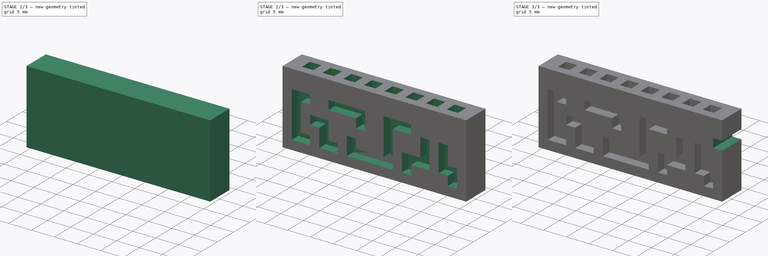
[diagram: build sequence overview — one tinted view per stage of 3, left to right]
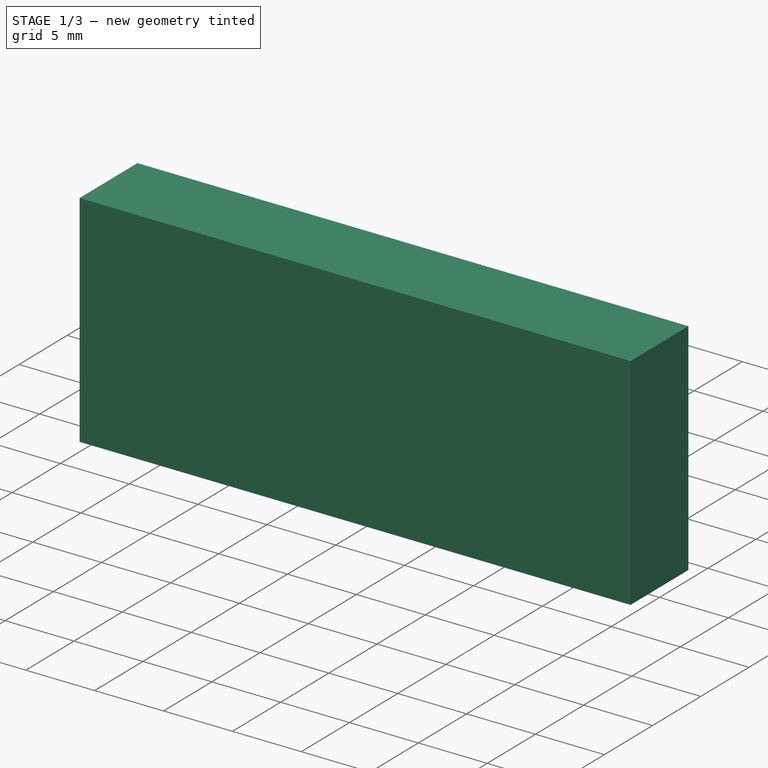
[diagram: stage 1 of 3 — iso view after this stage's code; geometry added in this stage tinted green]
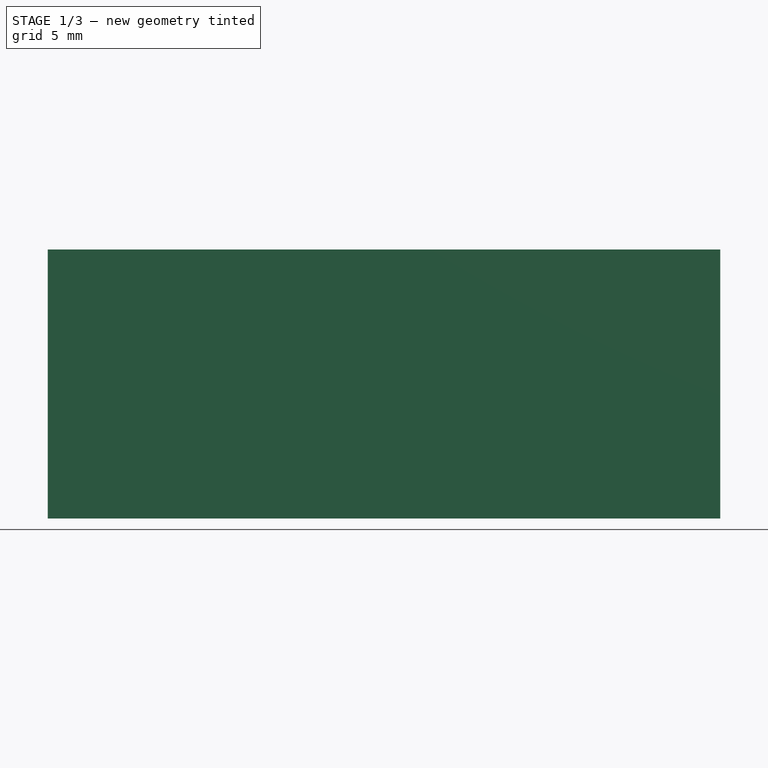
[diagram: stage 1 of 3 — front view after this stage's code; geometry added in this stage tinted green]
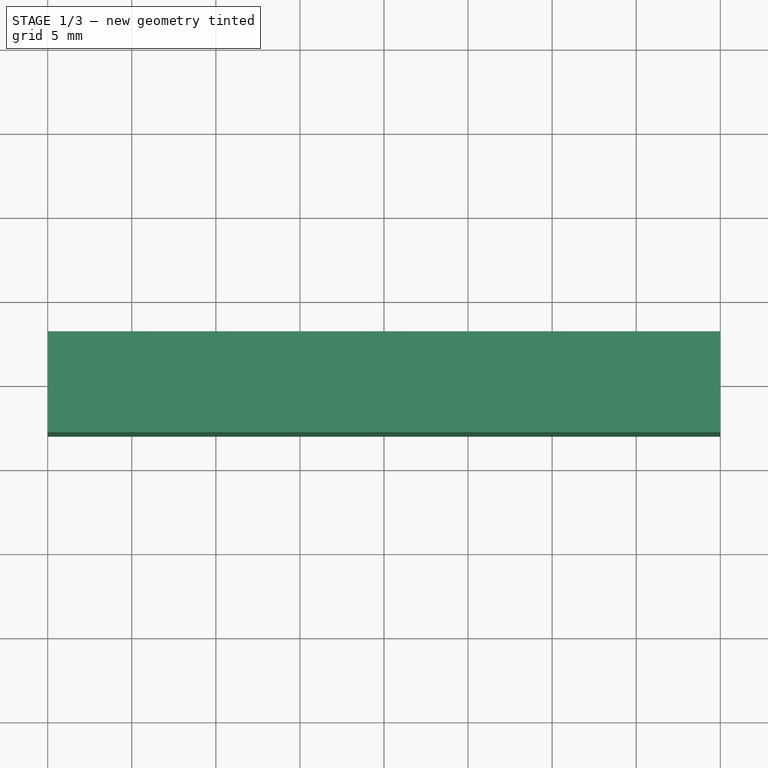
[diagram: stage 1 of 3 — top view after this stage's code; geometry added in this stage tinted green]
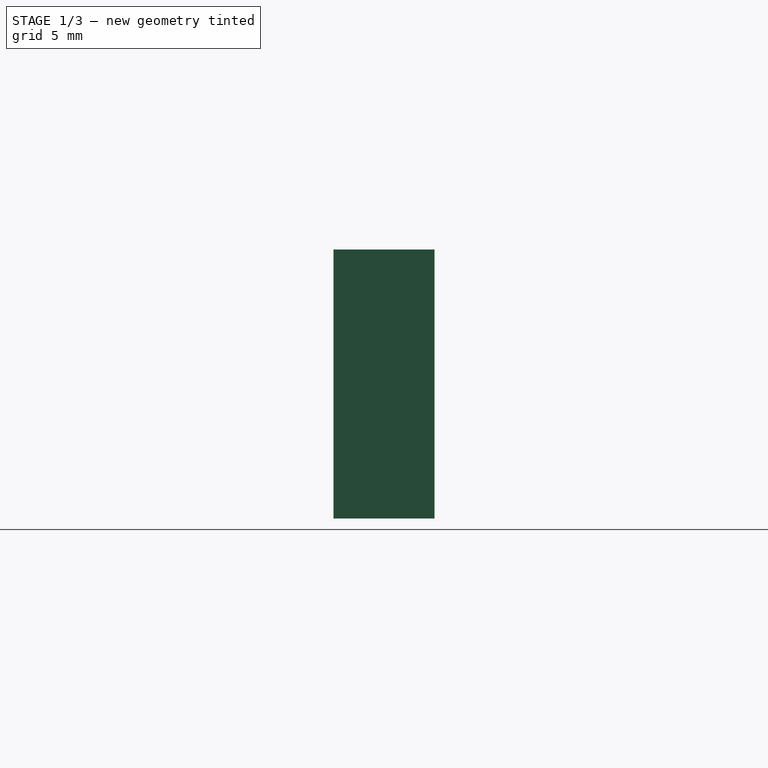
[diagram: stage 1 of 3 — right view after this stage's code; geometry added in this stage tinted green]
FCSTD DOCUMENT  (FreeCAD 0.20R29603 (Git))
Label: QMiniStorage
License: All rights reserved
LicenseURL: http://en.wikipedia.org/wiki/All_rights_reserved
objects: Sketcher::SketchObject×12, PartDesign::Pocket×4, PartDesign::Pad×2, PartDesign::Body×2
note: 26 computed .brp shape members not serialized (recipe doc carries the construction recipe); baked Part::Feature solids carry a one-line shape summary decoded from their .brp

FEATURE [Sketcher::SketchObject] Sketch
  FullyConstrained = true
  MapMode = 5
  Support = -> [XY_Plane]
  sketch-geometry (5):
    g0: LineSegment StartX=-20 StartY=-3 StartZ=0 EndX=-20 EndY=3 EndZ=0
    g1: LineSegment StartX=-20 StartY=3 StartZ=0 EndX=20 EndY=3 EndZ=0
    g2: LineSegment StartX=20 StartY=3 StartZ=0 EndX=20 EndY=-3 EndZ=0
    g3: LineSegment StartX=20 StartY=-3 StartZ=0 EndX=-20 EndY=-3 EndZ=0
    g4: GeomPoint X=0 Y=0 Z=0
  constraints (12):
    c: Coincident(g0,g1)
    c: Coincident(g1,g2)
    c: Coincident(g2,g3)
    c: Coincident(g3,g0)
    c: Horizontal(g1)
    c: Horizontal(g3)
    c: Vertical(g0)
    c: Vertical(g2)
    c: Symmetric(g1,g0,g4)
    c: Coincident(g4,g-1)
    c: DistanceX(g1,g1) = 40
    c: DistanceY(g0,g0) = 6
FEATURE [PartDesign::Pad] Pad
  Direction = (0,0,1)
  Length = 16
  Length2 = 10
  Profile = -> Sketch
  ReferenceAxis = -> Sketch [N_Axis]
  Type = 0
FEATURE [PartDesign::Body] Body  label="Base"
  Group = -> [Sketch,Pad,Sketch001,Pocket,Sketch002,Sketch003,Sketch004,Sketch005,Sketch006,Sketch007,Sketch008,Pocket001,MirroredSketch,Pocket002,Sketch009,Pocket003]
  Origin = -> Origin
  Tip = -> Pocket003
FEATURE [Sketcher::SketchObject] Sketch010
  FullyConstrained = true
  MapMode = 5
  Support = -> [XY_Plane001]
  sketch-geometry (5):
    g0: LineSegment StartX=-1 StartY=1 StartZ=0 EndX=-1 EndY=-1 EndZ=0
    g1: LineSegment StartX=-1 StartY=-1 StartZ=0 EndX=1 EndY=-1 EndZ=0
    g2: LineSegment StartX=1 StartY=-1 StartZ=0 EndX=1 EndY=1 EndZ=0
    g3: LineSegment StartX=1 StartY=1 StartZ=0 EndX=-1 EndY=1 EndZ=0
    g4: GeomPoint X=0 Y=0 Z=0
  constraints (12):
    c: Coincident(g0,g1)
    c: Coincident(g1,g2)
    c: Coincident(g2,g3)
    c: Coincident(g3,g0)
    c: Horizontal(g1)
    c: Horizontal(g3)
    c: Vertical(g0)
    c: Vertical(g2)
    c: Symmetric(g1,g0,g4)
    c: Coincident(g4,g-1)
    c: DistanceX(g3,g3) = 2
    c: DistanceY(g0,g0) = 2
FEATURE [PartDesign::Pad] Pad001
  Direction = (0,0,1)
  Length = 5
  Length2 = 10
  Profile = -> Sketch010
  ReferenceAxis = -> Sketch010 [N_Axis]
  Type = 0
FEATURE [PartDesign::Body] Body001  label="Indicator"
  Group = -> [Sketch010,Pad001]
  Origin = -> Origin001
  Tip = -> Pad001
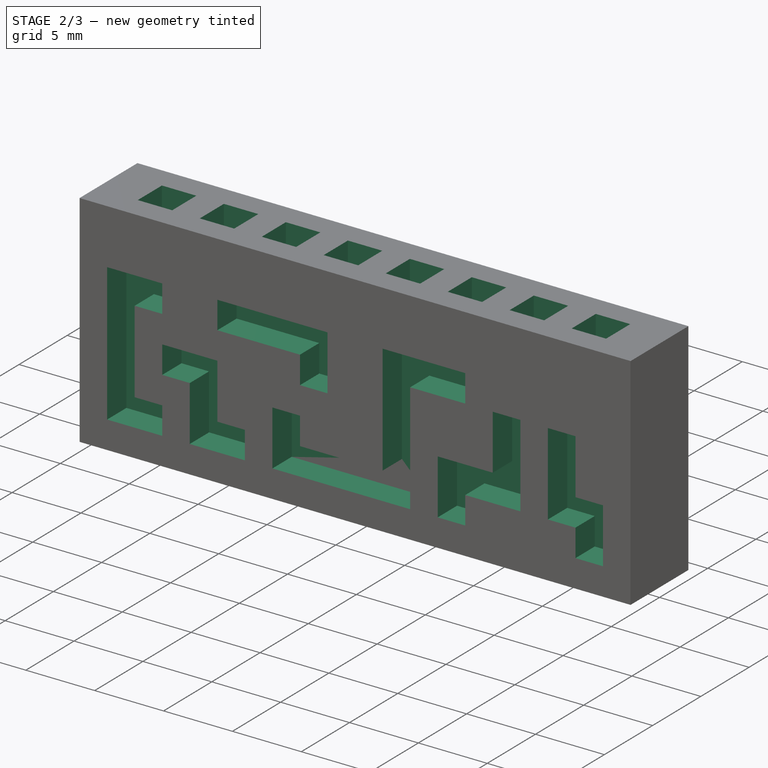
[diagram: stage 2 of 3 — iso view after this stage's code; geometry added in this stage tinted green]
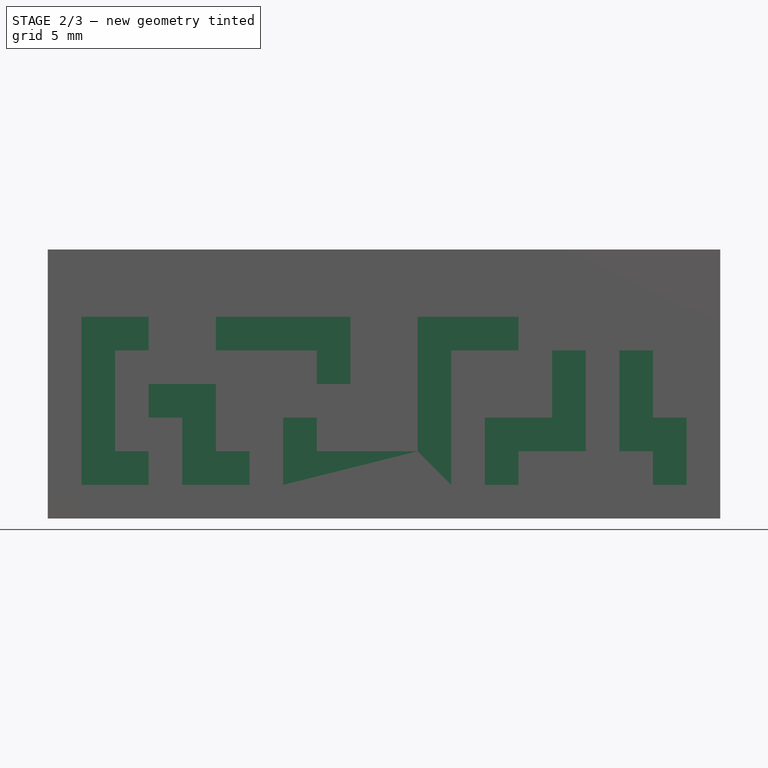
[diagram: stage 2 of 3 — front view after this stage's code; geometry added in this stage tinted green]
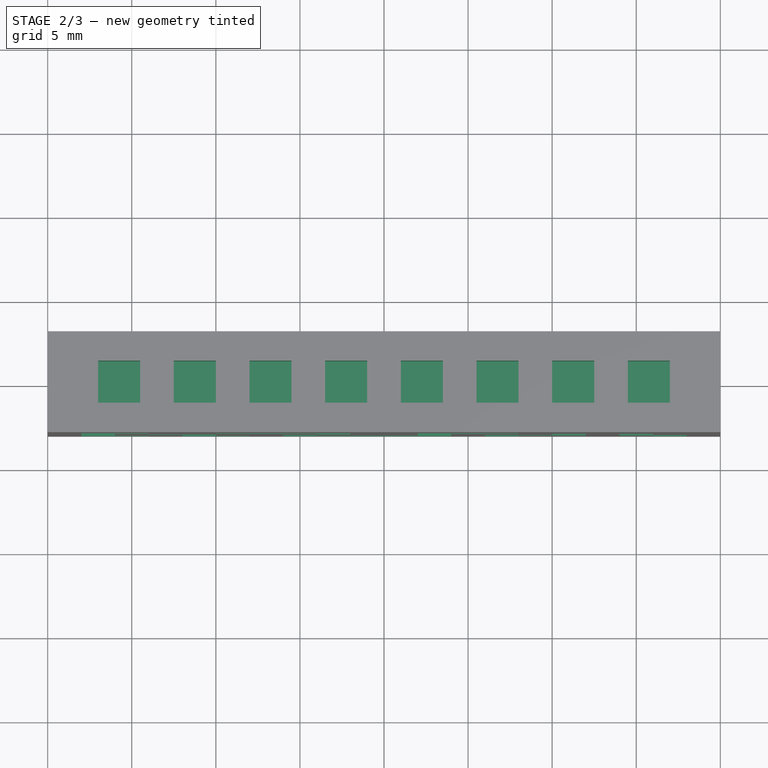
[diagram: stage 2 of 3 — top view after this stage's code; geometry added in this stage tinted green]
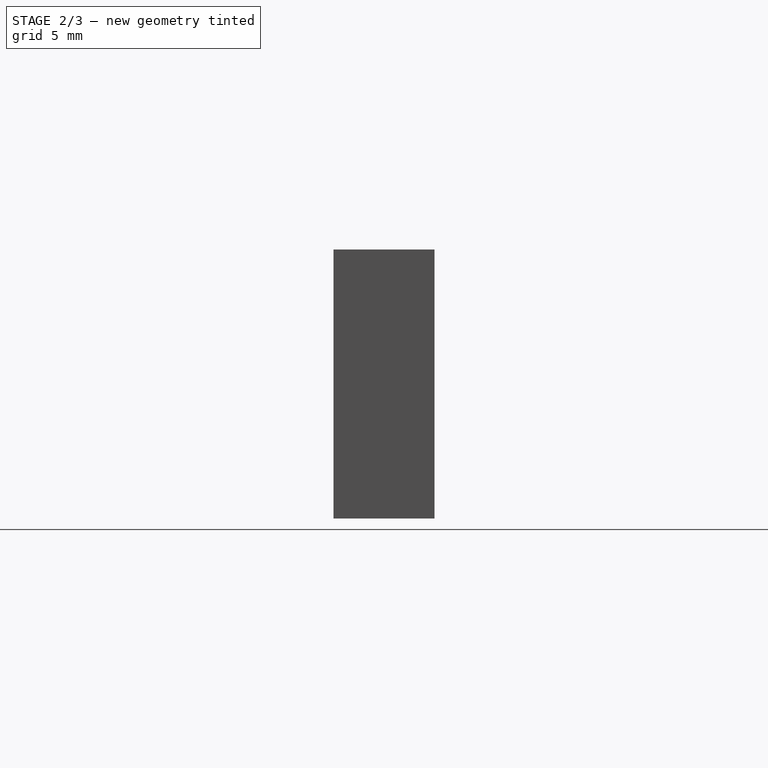
[diagram: stage 2 of 3 — right view after this stage's code; geometry added in this stage tinted green]
FEATURE [Sketcher::SketchObject] Sketch001
  FullyConstrained = true
  MapMode = 5
  Placement = pos=(0,0,16) rot=(0,0,1;0rad)
  Support = -> [Pad]
  sketch-geometry (40):
    g0: LineSegment StartX=1 StartY=1.25 StartZ=0 EndX=1 EndY=-1.25 EndZ=0
    g1: LineSegment StartX=1 StartY=-1.25 StartZ=0 EndX=3.5 EndY=-1.25 EndZ=0
    g2: LineSegment StartX=3.5 StartY=-1.25 StartZ=0 EndX=3.5 EndY=1.25 EndZ=0
    g3: LineSegment StartX=3.5 StartY=1.25 StartZ=0 EndX=1 EndY=1.25 EndZ=0
    g4: GeomPoint X=2.25 Y=0 Z=0
    g5: LineSegment StartX=5.5 StartY=1.25 StartZ=0 EndX=5.5 EndY=-1.25 EndZ=0
    g6: LineSegment StartX=5.5 StartY=-1.25 StartZ=0 EndX=8 EndY=-1.25 EndZ=0
    g7: LineSegment StartX=8 StartY=-1.25 StartZ=0 EndX=8 EndY=1.25 EndZ=0
    g8: LineSegment StartX=8 StartY=1.25 StartZ=0 EndX=5.5 EndY=1.25 EndZ=0
    g9: GeomPoint X=6.75 Y=0 Z=0
    g10: LineSegment StartX=10 StartY=1.25 StartZ=0 EndX=10 EndY=-1.25 EndZ=0
    g11: LineSegment StartX=10 StartY=-1.25 StartZ=0 EndX=12.5 EndY=-1.25 EndZ=0
    g12: LineSegment StartX=12.5 StartY=-1.25 StartZ=0 EndX=12.5 EndY=1.25 EndZ=0
    g13: LineSegment StartX=12.5 StartY=1.25 StartZ=0 EndX=10 EndY=1.25 EndZ=0
    g14: GeomPoint X=11.25 Y=0 Z=0
    g15: LineSegment StartX=14.5 StartY=1.25 StartZ=0 EndX=14.5 EndY=-1.25 EndZ=0
    g16: LineSegment StartX=14.5 StartY=-1.25 StartZ=0 EndX=17 EndY=-1.25 EndZ=0
    g17: LineSegment StartX=17 StartY=-1.25 StartZ=0 EndX=17 EndY=1.25 EndZ=0
    g18: LineSegment StartX=17 StartY=1.25 StartZ=0 EndX=14.5 EndY=1.25 EndZ=0
    g19: GeomPoint X=15.75 Y=0 Z=0
    g20: LineSegment StartX=-3.5 StartY=1.25 StartZ=0 EndX=-3.5 EndY=-1.25 EndZ=0
    g21: LineSegment StartX=-3.5 StartY=-1.25 StartZ=0 EndX=-1 EndY=-1.25 EndZ=0
    g22: LineSegment StartX=-1 StartY=-1.25 StartZ=0 EndX=-1 EndY=1.25 EndZ=0
    g23: LineSegment StartX=-1 StartY=1.25 StartZ=0 EndX=-3.5 EndY=1.25 EndZ=0
    g24: GeomPoint X=-2.25 Y=-2e-16 Z=0
    g25: LineSegment StartX=-8 StartY=1.25 StartZ=0 EndX=-8 EndY=-1.25 EndZ=0
    g26: LineSegment StartX=-8 StartY=-1.25 StartZ=0 EndX=-5.5 EndY=-1.25 EndZ=0
    g27: LineSegment StartX=-5.5 StartY=-1.25 StartZ=0 EndX=-5.5 EndY=1.25 EndZ=0
    g28: LineSegment StartX=-5.5 StartY=1.25 StartZ=0 EndX=-8 EndY=1.25 EndZ=0
    g29: GeomPoint X=-6.75 Y=-3.3e-15 Z=0
    g30: LineSegment StartX=-12.5 StartY=1.25 StartZ=0 EndX=-12.5 EndY=-1.25 EndZ=0
    g31: LineSegment StartX=-12.5 StartY=-1.25 StartZ=0 EndX=-10 EndY=-1.25 EndZ=0
    g32: LineSegment StartX=-10 StartY=-1.25 StartZ=0 EndX=-10 EndY=1.25 EndZ=0
    g33: LineSegment StartX=-10 StartY=1.25 StartZ=0 EndX=-12.5 EndY=1.25 EndZ=0
    g34: GeomPoint X=-11.25 Y=-6.0619e-12 Z=0
    g35: LineSegment StartX=-17 StartY=1.25 StartZ=0 EndX=-17 EndY=-1.25 EndZ=0
    g36: LineSegment StartX=-17 StartY=-1.25 StartZ=0 EndX=-14.5 EndY=-1.25 EndZ=0
    g37: LineSegment StartX=-14.5 StartY=-1.25 StartZ=0 EndX=-14.5 EndY=1.25 EndZ=0
    g38: LineSegment StartX=-14.5 StartY=1.25 StartZ=0 EndX=-17 EndY=1.25 EndZ=0
    g39: GeomPoint X=-15.75 Y=5.14e-14 Z=0
  constraints (100):
    c: Coincident(g0,g1)
    c: Coincident(g1,g2)
    c: Coincident(g2,g3)
    c: Coincident(g3,g0)
    c: Horizontal(g1)
    c: Horizontal(g3)
    c: Vertical(g0)
    c: Vertical(g2)
    c: Symmetric(g1,g0,g4)
    c: PointOnObject(g4,g-1)
    c: Coincident(g5,g6)
    c: Coincident(g6,g7)
    c: Coincident(g7,g8)
    c: Coincident(g8,g5)
    c: Horizontal(g6)
    c: Horizontal(g8)
    c: Vertical(g5)
    c: Vertical(g7)
    c: Symmetric(g6,g5,g9)
    c: PointOnObject(g9,g-1)
    c: Coincident(g10,g11)
    c: Coincident(g11,g12)
    c: Coincident(g12,g13)
    c: Coincident(g13,g10)
    c: Horizontal(g11)
    c: Horizontal(g13)
    c: Vertical(g10)
    c: Vertical(g12)
    c: Symmetric(g11,g10,g14)
    c: PointOnObject(g14,g-1)
    c: Coincident(g15,g16)
    c: Coincident(g16,g17)
    c: Coincident(g17,g18)
    c: Coincident(g18,g15)
    c: Horizontal(g16)
    c: Horizontal(g18)
    c: Vertical(g15)
    c: Vertical(g17)
    c: Symmetric(g16,g15,g19)
    c: PointOnObject(g19,g-1)
    c: Coincident(g20,g21)
    c: Coincident(g21,g22)
    c: Coincident(g22,g23)
    c: Coincident(g23,g20)
    c: Horizontal(g21)
    c: Horizontal(g23)
    c: Vertical(g20)
    c: Vertical(g22)
    c: Symmetric(g21,g20,g24)
    c: Coincident(g25,g26)
    c: Coincident(g26,g27)
    c: Coincident(g27,g28)
    c: Coincident(g28,g25)
    c: Horizontal(g26)
    c: Horizontal(g28)
    c: Vertical(g25)
    c: Vertical(g27)
    c: Symmetric(g26,g25,g29)
    c: Coincident(g30,g31)
    c: Coincident(g31,g32)
    c: Coincident(g32,g33)
    c: Coincident(g33,g30)
    c: Horizontal(g31)
    c: Horizontal(g33)
    c: Vertical(g30)
    c: Vertical(g32)
    c: Symmetric(g31,g30,g34)
    c: Coincident(g35,g36)
    c: Coincident(g36,g37)
    c: Coincident(g37,g38)
    c: Coincident(g38,g35)
    c: Horizontal(g36)
    c: Horizontal(g38)
    c: Vertical(g35)
    c: Vertical(g37)
    c: Symmetric(g36,g35,g39)
    c: Equal(g3,g8)
    c: Equal(g8,g23)
    c: Equal(g23,g28)
    c: Equal(g28,g18)
    c: Equal(g18,g13)
    c: Equal(g13,g33)
    c: Equal(g33,g38)
    c: Equal(g35,g30)
    c: Equal(g30,g25)
    c: Equal(g25,g20)
    c: Equal(g20,g0)
    c: Equal(g0,g5)
    c: Equal(g5,g10)
    c: Equal(g10,g15)
    c: DistanceX(g38,g38) = 2.5
    c: DistanceY(g35,g35) = 2.5
    c: Symmetric(g0,g22,g-2)
    c: DistanceX(g22,g0) = 2
    c: Symmetric(g27,g5,g-2)
    c: DistanceX(g2,g5) = 2
    c: Symmetric(g32,g10,g-2)
    c: DistanceX(g7,g10) = 2
    c: Symmetric(g37,g15,g-2)
    c: DistanceX(g37,g30) = 2
FEATURE [PartDesign::Pocket] Pocket
  BaseFeature = -> Pad
  Direction = (0,0,-1)
  Length = 2.5
  Length2 = 5
  Profile = -> Sketch001
  ReferenceAxis = -> Sketch001 [N_Axis]
  Type = 0
FEATURE [Sketcher::SketchObject] Sketch002
  FullyConstrained = true
  MapMode = 5
  Placement = pos=(0,-3,0) rot=(1,0,0;1.5708rad)
  Support = -> [Pocket]
  sketch-geometry (9):
    g0: LineSegment StartX=-18 StartY=12 StartZ=0 EndX=-18 EndY=2 EndZ=0
    g1: LineSegment StartX=-18 StartY=2 StartZ=0 EndX=-14 EndY=2 EndZ=0
    g2: LineSegment StartX=-14 StartY=12 StartZ=0 EndX=-18 EndY=12 EndZ=0
    g3: GeomPoint X=-16 Y=7 Z=0
    g4: LineSegment StartX=-14 StartY=12 StartZ=0 EndX=-14 EndY=10 EndZ=0
    g5: LineSegment StartX=-14 StartY=10 StartZ=0 EndX=-16 EndY=10 EndZ=0
    g6: LineSegment StartX=-16 StartY=10 StartZ=0 EndX=-16 EndY=4 EndZ=0
    g7: LineSegment StartX=-16 StartY=4 StartZ=0 EndX=-14 EndY=4 EndZ=0
    g8: LineSegment StartX=-14 StartY=4 StartZ=0 EndX=-14 EndY=2 EndZ=0
  constraints (25):
    c: Coincident(g0,g1)
    c: Coincident(g2,g0)
    c: Horizontal(g1)
    c: Horizontal(g2)
    c: Vertical(g0)
    c: Symmetric(g1,g0,g3)
    c: DistanceY(g0,g0) = 10
    c: DistanceX(g2,g2) = 4
    c: Coincident(g2,g4)
    c: Vertical(g4)
    c: Coincident(g4,g5)
    c: Coincident(g5,g6)
    c: Vertical(g6)
    c: Coincident(g6,g7)
    c: Horizontal(g7)
    c: Coincident(g7,g8)
    c: Coincident(g8,g1)
    c: Vertical(g8)
    c: Horizontal(g5)
    c: DistanceX(g5,g5) = 2
    c: DistanceY(g6,g6) = 6
    c: DistanceY(g4,g4) = 2
    c: Equal(g1,g2)
    c: DistanceX(g0) = -18
    c: DistanceY(g1) = 2
FEATURE [Sketcher::SketchObject] Sketch003
  FullyConstrained = true
  MapMode = 5
  Placement = pos=(0,-3,0) rot=(1,0,0;1.5708rad)
  Support = -> [Pocket]
  sketch-geometry (6):
    g0: LineSegment StartX=-10 StartY=12 StartZ=0 EndX=-10 EndY=10 EndZ=0
    g1: LineSegment StartX=-10 StartY=10 StartZ=0 EndX=-4 EndY=10 EndZ=0
    g2: LineSegment StartX=-4 StartY=10 StartZ=0 EndX=-4 EndY=8 EndZ=0
    g3: LineSegment StartX=-4 StartY=8 StartZ=0 EndX=-2 EndY=8 EndZ=0
    g4: LineSegment StartX=-2 StartY=8 StartZ=0 EndX=-2 EndY=12 EndZ=0
    g5: LineSegment StartX=-2 StartY=12 StartZ=0 EndX=-10 EndY=12 EndZ=0
  constraints (18):
    c: Vertical(g0)
    c: Coincident(g0,g1)
    c: Horizontal(g1)
    c: Coincident(g1,g2)
    c: Vertical(g2)
    c: Coincident(g2,g3)
    c: Horizontal(g3)
    c: Coincident(g3,g4)
    c: Vertical(g4)
    c: Coincident(g4,g5)
    c: Coincident(g5,g0)
    c: Horizontal(g5)
    c: DistanceY(g4,g4) = 4
    c: DistanceY(g0,g0) = 2
    c: DistanceX(g5,g5) = 8
    c: DistanceX(g3,g3) = 2
    c: DistanceX(g3,g-1) = 2
    c: DistanceY(g3,g-1) = -8
FEATURE [Sketcher::SketchObject] Sketch004
  FullyConstrained = true
  MapMode = 5
  Placement = pos=(0,-3,0) rot=(1,0,0;1.5708rad)
  Support = -> [Pocket]
  sketch-geometry (8):
    g0: LineSegment StartX=-12 StartY=2 StartZ=0 EndX=-8 EndY=2 EndZ=0
    g1: LineSegment StartX=-8 StartY=2 StartZ=0 EndX=-8 EndY=4 EndZ=0
    g2: LineSegment StartX=-8 StartY=4 StartZ=0 EndX=-10 EndY=4 EndZ=0
    g3: LineSegment StartX=-10 StartY=4 StartZ=0 EndX=-10 EndY=8 EndZ=0
    g4: LineSegment StartX=-10 StartY=8 StartZ=0 EndX=-14 EndY=8 EndZ=0
    g5: LineSegment StartX=-14 StartY=8 StartZ=0 EndX=-14 EndY=6 EndZ=0
    g6: LineSegment StartX=-14 StartY=6 StartZ=0 EndX=-12 EndY=6 EndZ=0
    g7: LineSegment StartX=-12 StartY=6 StartZ=0 EndX=-12 EndY=2 EndZ=0
  constraints (25):
    c: Horizontal(g0)
    c: Coincident(g0,g1)
    c: Vertical(g1)
    c: Coincident(g1,g2)
    c: Horizontal(g2)
    c: Coincident(g2,g3)
    c: Vertical(g3)
    c: Coincident(g3,g4)
    c: Horizontal(g4)
    c: DistanceX(g0,g0) = 4
    c: DistanceX(g4,g4) = 4
    c: DistanceY(g0,g4) = 6
    c: DistanceY(g1,g1) = 2
    c: DistanceY(g-1,g0) = 2
    c: DistanceX(g0) = -8
    c: DistanceX(g2,g2) = 2
    c: Vertical(g5)
    c: Coincident(g5,g6)
    c: Horizontal(g6)
    c: Coincident(g6,g7)
    c: Coincident(g7,g0)
    c: Vertical(g7)
    c: DistanceX(g6,g6) = 2
    c: DistanceY(g5,g5) = 2
    c: DistanceY(g7,g7) = 4
FEATURE [Sketcher::SketchObject] Sketch005
  FullyConstrained = true
  MapMode = 5
  Placement = pos=(0,-3,0) rot=(1,0,0;1.5708rad)
  Support = -> [Pocket]
  sketch-geometry (10):
    g0: LineSegment StartX=-6 StartY=6 StartZ=0 EndX=-6 EndY=2 EndZ=0
    g1: LineSegment StartX=-6 StartY=2 StartZ=0 EndX=4 EndY=2 EndZ=0
    g2: LineSegment StartX=8 StartY=12 StartZ=0 EndX=2 EndY=12 EndZ=0
    g3: LineSegment StartX=2 StartY=12 StartZ=0 EndX=2 EndY=4 EndZ=0
    g4: LineSegment StartX=2 StartY=4 StartZ=0 EndX=-4 EndY=4 EndZ=0
    g5: LineSegment StartX=-4 StartY=4 StartZ=0 EndX=-4 EndY=6 EndZ=0
    g6: LineSegment StartX=-4 StartY=6 StartZ=0 EndX=-6 EndY=6 EndZ=0
    g7: LineSegment StartX=4 StartY=2 StartZ=0 EndX=4 EndY=10 EndZ=0
    g8: LineSegment StartX=4 StartY=10 StartZ=0 EndX=8 EndY=10 EndZ=0
    g9: LineSegment StartX=8 StartY=10 StartZ=0 EndX=8 EndY=12 EndZ=0
  constraints (30):
    c: Vertical(g0)
    c: Coincident(g0,g1)
    c: Horizontal(g1)
    c: Coincident(g2,g3)
    c: Vertical(g3)
    c: Coincident(g3,g4)
    c: Horizontal(g4)
    c: Coincident(g4,g5)
    c: Vertical(g5)
    c: Coincident(g5,g6)
    c: Horizontal(g6)
    c: Coincident(g0,g6)
    c: Horizontal(g2)
    c: DistanceX(g2,g2) = 6
    c: DistanceY(g1,g2) = 10
    c: DistanceX(g4,g4) = 6
    c: DistanceY(g0,g0) = 4
    c: DistanceX(g0) = -6
    c: DistanceY(g0) = 2
    c: DistanceY(g5,g5) = 2
    c: Coincident(g1,g7)
    c: Vertical(g7)
    c: Coincident(g7,g8)
    c: Horizontal(g8)
    c: Coincident(g8,g9)
    c: Coincident(g9,g2)
    c: DistanceX(g6,g6) = 2
    c: Vertical(g9)
    c: DistanceY(g7,g7) = 8
    c: DistanceX(g8,g8) = 4
FEATURE [Sketcher::SketchObject] Sketch006
  FullyConstrained = true
  MapMode = 5
  Placement = pos=(0,-3,0) rot=(1,0,0;1.5708rad)
  Support = -> [Pocket]
  sketch-geometry (8):
    g0: LineSegment StartX=6 StartY=6 StartZ=0 EndX=6 EndY=2 EndZ=0
    g1: LineSegment StartX=6 StartY=2 StartZ=0 EndX=8 EndY=2 EndZ=0
    g2: LineSegment StartX=8 StartY=2 StartZ=0 EndX=8 EndY=4 EndZ=0
    g3: LineSegment StartX=8 StartY=4 StartZ=0 EndX=12 EndY=4 EndZ=0
    g4: LineSegment StartX=12 StartY=4 StartZ=0 EndX=12 EndY=10 EndZ=0
    g5: LineSegment StartX=12 StartY=10 StartZ=0 EndX=10 EndY=10 EndZ=0
    g6: LineSegment StartX=10 StartY=10 StartZ=0 EndX=10 EndY=6 EndZ=0
    g7: LineSegment StartX=10 StartY=6 StartZ=0 EndX=6 EndY=6 EndZ=0
  constraints (24):
    c: Vertical(g0)
    c: Coincident(g0,g1)
    c: Horizontal(g1)
    c: Coincident(g1,g2)
    c: Vertical(g2)
    c: Coincident(g2,g3)
    c: Horizontal(g3)
    c: Coincident(g3,g4)
    c: Vertical(g4)
    c: Coincident(g4,g5)
    c: Horizontal(g5)
    c: Coincident(g5,g6)
    c: Vertical(g6)
    c: Coincident(g6,g7)
    c: Coincident(g7,g0)
    c: Horizontal(g7)
    c: DistanceX(g1,g1) = 2
    c: DistanceX(g5,g5) = 2
    c: DistanceX(g3,g3) = 4
    c: DistanceX(g0) = 6
    c: DistanceY(g0) = 2
    c: DistanceY(g2,g2) = 2
    c: DistanceY(g4,g4) = 6
    c: DistanceY(g6,g6) = 4
FEATURE [Sketcher::SketchObject] Sketch007
  FullyConstrained = true
  MapMode = 5
  Placement = pos=(0,-3,0) rot=(1,0,0;1.5708rad)
  Support = -> [Pocket]
  sketch-geometry (8):
    g0: LineSegment StartX=14 StartY=4 StartZ=0 EndX=14 EndY=10 EndZ=0
    g1: LineSegment StartX=14 StartY=10 StartZ=0 EndX=16 EndY=10 EndZ=0
    g2: LineSegment StartX=16 StartY=10 StartZ=0 EndX=16 EndY=6 EndZ=0
    g3: LineSegment StartX=16 StartY=6 StartZ=0 EndX=18 EndY=6 EndZ=0
    g4: LineSegment StartX=18 StartY=6 StartZ=0 EndX=18 EndY=2 EndZ=0
    g5: LineSegment StartX=14 StartY=4 StartZ=0 EndX=16 EndY=4 EndZ=0
    g6: LineSegment StartX=16 StartY=4 StartZ=0 EndX=16 EndY=2 EndZ=0
    g7: LineSegment StartX=16 StartY=2 StartZ=0 EndX=18 EndY=2 EndZ=0
  constraints (24):
    c: Coincident(g0,g1)
    c: Horizontal(g1)
    c: DistanceX(g1,g1) = 2
    c: DistanceX(g0) = 14
    c: DistanceY(g4,g1) = 8
    c: Coincident(g1,g2)
    c: Coincident(g2,g3)
    c: Horizontal(g3)
    c: Coincident(g3,g4)
    c: Vertical(g4)
    c: DistanceY(g4) = 2
    c: DistanceY(g0,g0) = 6
    c: Coincident(g0,g5)
    c: Horizontal(g5)
    c: Coincident(g5,g6)
    c: Vertical(g6)
    c: Coincident(g6,g7)
    c: Coincident(g7,g4)
    c: Horizontal(g7)
    c: Vertical(g2)
    c: DistanceX(g3,g3) = 2
    c: DistanceX(g5,g5) = 2
    c: DistanceY(g4,g4) = 4
    c: Vertical(g0)
FEATURE [Sketcher::SketchObject] Sketch008
  FullyConstrained = true
  MapMode = 5
  Placement = pos=(0,-3,0) rot=(1,0,0;1.5708rad)
  Support = -> [Pocket]
  sketch-geometry (49):
    g0: LineSegment StartX=-18 StartY=12 StartZ=0 EndX=-18 EndY=2 EndZ=0
    g1: LineSegment StartX=-18 StartY=2 StartZ=0 EndX=-14 EndY=2 EndZ=0
    g2: LineSegment StartX=-14 StartY=12 StartZ=0 EndX=-18 EndY=12 EndZ=0
    g3: GeomPoint X=-16 Y=7 Z=0
    g4: LineSegment StartX=-14 StartY=12 StartZ=0 EndX=-14 EndY=10 EndZ=0
    g5: LineSegment StartX=-14 StartY=10 StartZ=0 EndX=-16 EndY=10 EndZ=0
    g6: LineSegment StartX=-16 StartY=10 StartZ=0 EndX=-16 EndY=4 EndZ=0
    g7: LineSegment StartX=-16 StartY=4 StartZ=0 EndX=-14 EndY=4 EndZ=0
    g8: LineSegment StartX=-14 StartY=4 StartZ=0 EndX=-14 EndY=2 EndZ=0
    g9: LineSegment StartX=-10 StartY=12 StartZ=0 EndX=-10 EndY=10 EndZ=0
    g10: LineSegment StartX=-10 StartY=10 StartZ=0 EndX=-4 EndY=10 EndZ=0
    g11: LineSegment StartX=-4 StartY=10 StartZ=0 EndX=-4 EndY=8 EndZ=0
    g12: LineSegment StartX=-4 StartY=8 StartZ=0 EndX=-2 EndY=8 EndZ=0
    g13: LineSegment StartX=-2 StartY=8 StartZ=0 EndX=-2 EndY=12 EndZ=0
    g14: LineSegment StartX=-2 StartY=12 StartZ=0 EndX=-10 EndY=12 EndZ=0
    g15: LineSegment StartX=-12 StartY=2 StartZ=0 EndX=-8 EndY=2 EndZ=0
    g16: LineSegment StartX=-8 StartY=2 StartZ=0 EndX=-8 EndY=4 EndZ=0
    g17: LineSegment StartX=-8 StartY=4 StartZ=0 EndX=-10 EndY=4 EndZ=0
    g18: LineSegment StartX=-10 StartY=4 StartZ=0 EndX=-10 EndY=8 EndZ=0
    g19: LineSegment StartX=-10 StartY=8 StartZ=0 EndX=-14 EndY=8 EndZ=0
    g20: LineSegment StartX=-14 StartY=8 StartZ=0 EndX=-14 EndY=6 EndZ=0
    g21: LineSegment StartX=-14 StartY=6 StartZ=0 EndX=-12 EndY=6 EndZ=0
    g22: LineSegment StartX=-12 StartY=6 StartZ=0 EndX=-12 EndY=2 EndZ=0
    g23: LineSegment StartX=-6 StartY=6 StartZ=0 EndX=-6 EndY=2 EndZ=0
    g24: LineSegment StartX=-6 StartY=2 StartZ=0 EndX=4 EndY=2 EndZ=0
    g25: LineSegment StartX=8 StartY=12 StartZ=0 EndX=2 EndY=12 EndZ=0
    g26: LineSegment StartX=2 StartY=12 StartZ=0 EndX=2 EndY=4 EndZ=0
    g27: LineSegment StartX=2 StartY=4 StartZ=0 EndX=-4 EndY=4 EndZ=0
    g28: LineSegment StartX=-4 StartY=4 StartZ=0 EndX=-4 EndY=6 EndZ=0
    g29: LineSegment StartX=-4 StartY=6 StartZ=0 EndX=-6 EndY=6 EndZ=0
    g30: LineSegment StartX=4 StartY=2 StartZ=0 EndX=4 EndY=10 EndZ=0
    g31: LineSegment StartX=4 StartY=10 StartZ=0 EndX=8 EndY=10 EndZ=0
    g32: LineSegment StartX=8 StartY=10 StartZ=0 EndX=8 EndY=12 EndZ=0
    g33: LineSegment StartX=6 StartY=6 StartZ=0 EndX=6 EndY=2 EndZ=0
    g34: LineSegment StartX=6 StartY=2 StartZ=0 EndX=8 EndY=2 EndZ=0
    g35: LineSegment StartX=8 StartY=2 StartZ=0 EndX=8 EndY=4 EndZ=0
    g36: LineSegment StartX=8 StartY=4 StartZ=0 EndX=12 EndY=4 EndZ=0
    g37: LineSegment StartX=12 StartY=4 StartZ=0 EndX=12 EndY=10 EndZ=0
    g38: LineSegment StartX=12 StartY=10 StartZ=0 EndX=10 EndY=10 EndZ=0
    g39: LineSegment StartX=10 StartY=10 StartZ=0 EndX=10 EndY=6 EndZ=0
    g40: LineSegment StartX=10 StartY=6 StartZ=0 EndX=6 EndY=6 EndZ=0
    g41: LineSegment StartX=14 StartY=4 StartZ=0 EndX=14 EndY=10 EndZ=0
    g42: LineSegment StartX=14 StartY=10 StartZ=0 EndX=16 EndY=10 EndZ=0
    g43: LineSegment StartX=16 StartY=10 StartZ=0 EndX=16 EndY=6 EndZ=0
    g44: LineSegment StartX=16 StartY=6 StartZ=0 EndX=18 EndY=6 EndZ=0
    g45: LineSegment StartX=18 StartY=6 StartZ=0 EndX=18 EndY=2 EndZ=0
    g46: LineSegment StartX=14 StartY=4 StartZ=0 EndX=16 EndY=4 EndZ=0
    g47: LineSegment StartX=16 StartY=4 StartZ=0 EndX=16 EndY=2 EndZ=0
    g48: LineSegment StartX=16 StartY=2 StartZ=0 EndX=18 EndY=2 EndZ=0
  constraints (146):
    c: Coincident(g0,g1)
    c: Coincident(g2,g0)
    c: Horizontal(g1)
    c: Horizontal(g2)
    c: Vertical(g0)
    c: Symmetric(g1,g0,g3)
    c: DistanceY(g0,g0) = 10
    c: DistanceX(g2,g2) = 4
    c: Coincident(g2,g4)
    c: Vertical(g4)
    c: Coincident(g4,g5)
    c: Coincident(g5,g6)
    c: Vertical(g6)
    c: Coincident(g6,g7)
    c: Horizontal(g7)
    c: Coincident(g7,g8)
    c: Coincident(g8,g1)
    c: Vertical(g8)
    c: Horizontal(g5)
    c: DistanceX(g5,g5) = 2
    c: DistanceY(g6,g6) = 6
    c: DistanceY(g4,g4) = 2
    c: Equal(g1,g2)
    c: DistanceX(g0) = -18
    c: DistanceY(g1) = 2
    c: Vertical(g9)
    c: Coincident(g9,g10)
    c: Horizontal(g10)
    c: Coincident(g10,g11)
    c: Vertical(g11)
    c: Coincident(g11,g12)
    c: Horizontal(g12)
    c: Coincident(g12,g13)
    c: Vertical(g13)
    c: Coincident(g13,g14)
    c: Coincident(g14,g9)
    c: Horizontal(g14)
    c: DistanceY(g13,g13) = 4
    c: DistanceY(g9,g9) = 2
    c: DistanceX(g14,g14) = 8
    c: DistanceX(g12,g12) = 2
    c: DistanceX(g12,g-1) = 2
    c: DistanceY(g12,g-1) = -8
    c: Horizontal(g15)
    c: Coincident(g15,g16)
    c: Vertical(g16)
    c: Coincident(g16,g17)
    c: Horizontal(g17)
    c: Coincident(g17,g18)
    c: Vertical(g18)
    c: Coincident(g18,g19)
    c: Horizontal(g19)
    c: DistanceX(g15,g15) = 4
    c: DistanceX(g19,g19) = 4
    c: DistanceY(g15,g19) = 6
    c: DistanceY(g16,g16) = 2
    c: DistanceY(g-1,g15) = 2
    c: DistanceX(g15) = -8
    c: DistanceX(g17,g17) = 2
    c: Vertical(g20)
    c: Coincident(g20,g21)
    c: Horizontal(g21)
    c: Coincident(g21,g22)
    c: Coincident(g22,g15)
    c: Vertical(g22)
    c: DistanceX(g21,g21) = 2
    c: DistanceY(g20,g20) = 2
    c: DistanceY(g22,g22) = 4
    c: Vertical(g23)
    c: Coincident(g23,g24)
    c: Horizontal(g24)
    c: Coincident(g25,g26)
    c: Vertical(g26)
    c: Coincident(g26,g27)
    c: Horizontal(g27)
    c: Coincident(g27,g28)
    c: Vertical(g28)
    c: Coincident(g28,g29)
    c: Horizontal(g29)
    c: Coincident(g23,g29)
    c: Horizontal(g25)
    c: DistanceX(g25,g25) = 6
    c: DistanceY(g24,g25) = 10
    c: DistanceX(g27,g27) = 6
    c: DistanceY(g23,g23) = 4
    c: DistanceX(g23) = -6
    c: DistanceY(g23) = 2
    c: DistanceY(g28,g28) = 2
    c: Coincident(g24,g30)
    c: Vertical(g30)
    c: Coincident(g30,g31)
    c: Horizontal(g31)
    c: Coincident(g31,g32)
    c: Coincident(g32,g25)
    c: DistanceX(g29,g29) = 2
    c: Vertical(g32)
    c: DistanceY(g30,g30) = 8
    c: DistanceX(g31,g31) = 4
    c: Vertical(g33)
    c: Coincident(g33,g34)
    c: Horizontal(g34)
    c: Coincident(g34,g35)
    c: Vertical(g35)
    c: Coincident(g35,g36)
    c: Horizontal(g36)
    c: Coincident(g36,g37)
    c: Vertical(g37)
    c: Coincident(g37,g38)
    c: Horizontal(g38)
    c: Coincident(g38,g39)
    c: Vertical(g39)
    c: Coincident(g39,g40)
    c: Coincident(g40,g33)
    c: Horizontal(g40)
    c: DistanceX(g34,g34) = 2
    c: DistanceX(g38,g38) = 2
    c: DistanceX(g36,g36) = 4
    c: DistanceX(g33) = 6
    c: DistanceY(g33) = 2
    c: DistanceY(g35,g35) = 2
    c: DistanceY(g37,g37) = 6
    c: DistanceY(g39,g39) = 4
    c: Coincident(g41,g42)
    c: Horizontal(g42)
    c: DistanceX(g42,g42) = 2
    c: DistanceX(g41) = 14
    c: DistanceY(g45,g42) = 8
    c: Coincident(g42,g43)
    c: Coincident(g43,g44)
    c: Horizontal(g44)
    c: Coincident(g44,g45)
    c: Vertical(g45)
    c: DistanceY(g45) = 2
    c: DistanceY(g41,g41) = 6
    c: Coincident(g41,g46)
    c: Horizontal(g46)
    c: Coincident(g46,g47)
    c: Vertical(g47)
    c: Coincident(g47,g48)
    c: Coincident(g48,g45)
    c: Horizontal(g48)
    c: Vertical(g43)
    c: DistanceX(g44,g44) = 2
    c: DistanceX(g46,g46) = 2
    c: DistanceY(g45,g45) = 4
    c: Vertical(g41)
FEATURE [PartDesign::Pocket] Pocket001
  BaseFeature = -> Pocket
  Direction = (0,1,-2e-16)
  Length = 2
  Length2 = 5
  Profile = -> Sketch008
  ReferenceAxis = -> Sketch008 [N_Axis]
  Type = 0
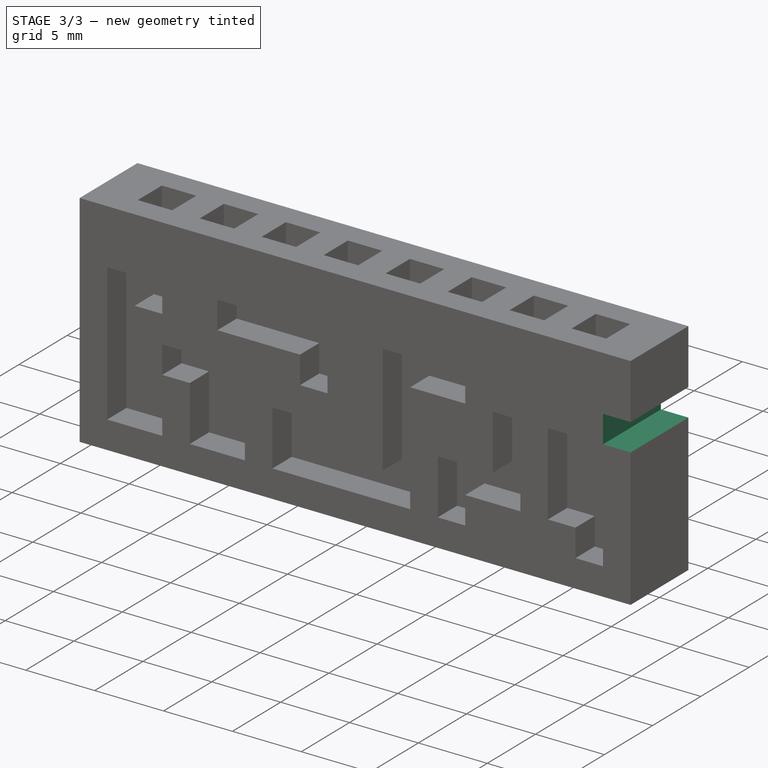
[diagram: stage 3 of 3 — iso view after this stage's code; geometry added in this stage tinted green]
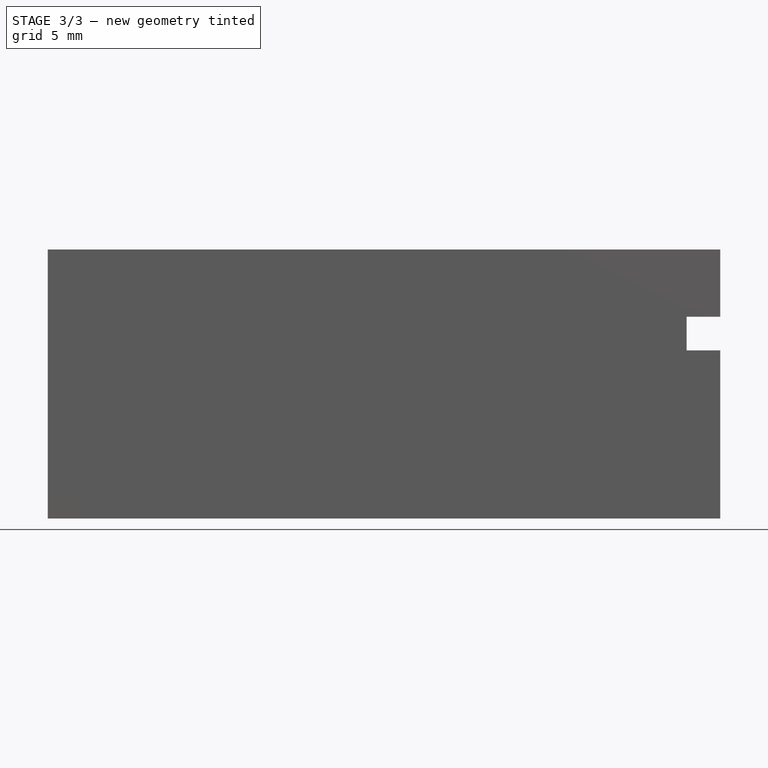
[diagram: stage 3 of 3 — front view after this stage's code; geometry added in this stage tinted green]
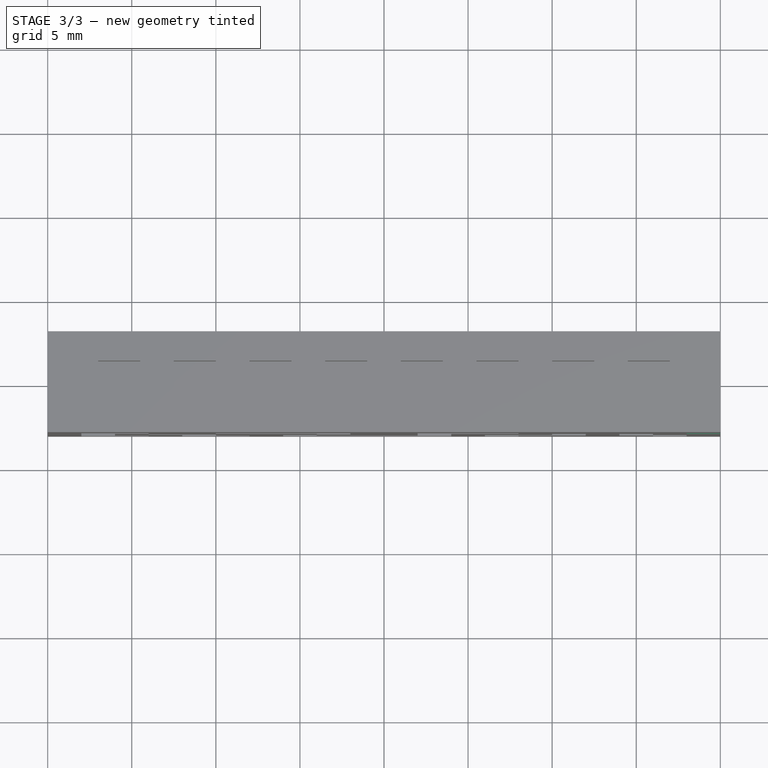
[diagram: stage 3 of 3 — top view after this stage's code; geometry added in this stage tinted green]
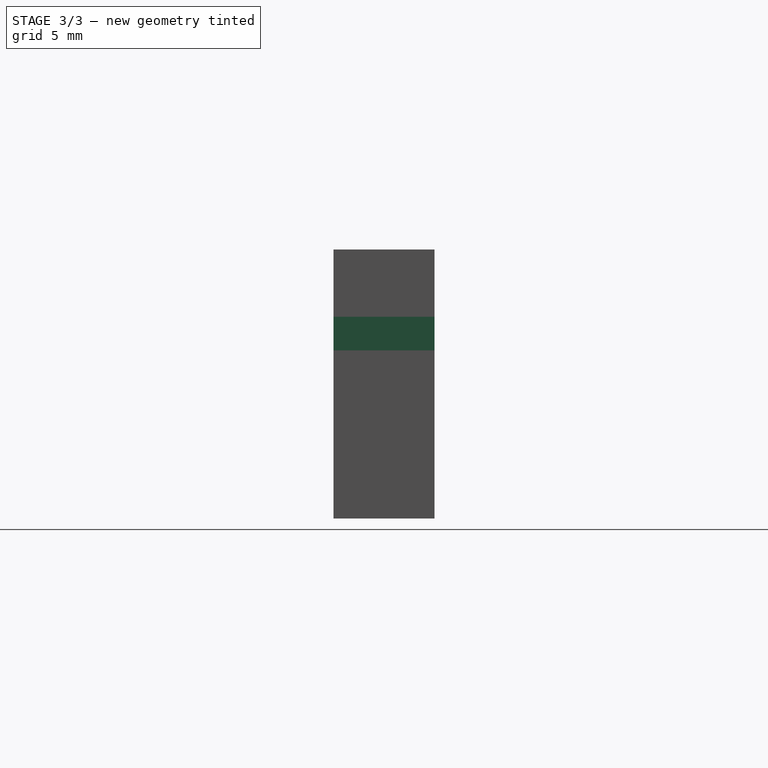
[diagram: stage 3 of 3 — right view after this stage's code; geometry added in this stage tinted green]
FEATURE [Sketcher::SketchObject] MirroredSketch
  FullyConstrained = false
  MapMode = 5
  Placement = pos=(0,3,0) rot=(0,0.707107,0.707107;3.14159rad)
  Support = -> [Pocket001]
  sketch-geometry (49):
    g0: LineSegment StartX=18 StartY=12 StartZ=0 EndX=18 EndY=2 EndZ=0
    g1: LineSegment StartX=18 StartY=2 StartZ=0 EndX=14 EndY=2 EndZ=0
    g2: LineSegment StartX=14 StartY=12 StartZ=0 EndX=18 EndY=12 EndZ=0
    g3: GeomPoint X=16 Y=7 Z=0
    g4: LineSegment StartX=14 StartY=12 StartZ=0 EndX=14 EndY=10 EndZ=0
    g5: LineSegment StartX=14 StartY=10 StartZ=0 EndX=16 EndY=10 EndZ=0
    g6: LineSegment StartX=16 StartY=10 StartZ=0 EndX=16 EndY=4 EndZ=0
    g7: LineSegment StartX=16 StartY=4 StartZ=0 EndX=14 EndY=4 EndZ=0
    g8: LineSegment StartX=14 StartY=4 StartZ=0 EndX=14 EndY=2 EndZ=0
    g9: LineSegment StartX=10 StartY=12 StartZ=0 EndX=10 EndY=10 EndZ=0
    g10: LineSegment StartX=10 StartY=10 StartZ=0 EndX=4 EndY=10 EndZ=0
    g11: LineSegment StartX=4 StartY=10 StartZ=0 EndX=4 EndY=8 EndZ=0
    g12: LineSegment StartX=4 StartY=8 StartZ=0 EndX=2 EndY=8 EndZ=0
    g13: LineSegment StartX=2 StartY=8 StartZ=0 EndX=2 EndY=12 EndZ=0
    g14: LineSegment StartX=2 StartY=12 StartZ=0 EndX=10 EndY=12 EndZ=0
    g15: LineSegment StartX=12 StartY=2 StartZ=0 EndX=8 EndY=2 EndZ=0
    g16: LineSegment StartX=8 StartY=2 StartZ=0 EndX=8 EndY=4 EndZ=0
    g17: LineSegment StartX=8 StartY=4 StartZ=0 EndX=10 EndY=4 EndZ=0
    g18: LineSegment StartX=10 StartY=4 StartZ=0 EndX=10 EndY=8 EndZ=0
    g19: LineSegment StartX=10 StartY=8 StartZ=0 EndX=14 EndY=8 EndZ=0
    g20: LineSegment StartX=14 StartY=8 StartZ=0 EndX=14 EndY=6 EndZ=0
    g21: LineSegment StartX=14 StartY=6 StartZ=0 EndX=12 EndY=6 EndZ=0
    g22: LineSegment StartX=12 StartY=6 StartZ=0 EndX=12 EndY=2 EndZ=0
    g23: LineSegment StartX=6 StartY=6 StartZ=0 EndX=6 EndY=2 EndZ=0
    g24: LineSegment StartX=6 StartY=2 StartZ=0 EndX=-4 EndY=2 EndZ=0
    g25: LineSegment StartX=-8 StartY=12 StartZ=0 EndX=-2 EndY=12 EndZ=0
    g26: LineSegment StartX=-2 StartY=12 StartZ=0 EndX=-2 EndY=4 EndZ=0
    g27: LineSegment StartX=-2 StartY=4 StartZ=0 EndX=4 EndY=4 EndZ=0
    g28: LineSegment StartX=4 StartY=4 StartZ=0 EndX=4 EndY=6 EndZ=0
    g29: LineSegment StartX=4 StartY=6 StartZ=0 EndX=6 EndY=6 EndZ=0
    g30: LineSegment StartX=-4 StartY=2 StartZ=0 EndX=-4 EndY=10 EndZ=0
    g31: LineSegment StartX=-4 StartY=10 StartZ=0 EndX=-8 EndY=10 EndZ=0
    g32: LineSegment StartX=-8 StartY=10 StartZ=0 EndX=-8 EndY=12 EndZ=0
    g33: LineSegment StartX=-6 StartY=6 StartZ=0 EndX=-6 EndY=2 EndZ=0
    g34: LineSegment StartX=-6 StartY=2 StartZ=0 EndX=-8 EndY=2 EndZ=0
    g35: LineSegment StartX=-8 StartY=2 StartZ=0 EndX=-8 EndY=4 EndZ=0
    g36: LineSegment StartX=-8 StartY=4 StartZ=0 EndX=-12 EndY=4 EndZ=0
    g37: LineSegment StartX=-12 StartY=4 StartZ=0 EndX=-12 EndY=10 EndZ=0
    g38: LineSegment StartX=-12 StartY=10 StartZ=0 EndX=-10 EndY=10 EndZ=0
    g39: LineSegment StartX=-10 StartY=10 StartZ=0 EndX=-10 EndY=6 EndZ=0
    g40: LineSegment StartX=-10 StartY=6 StartZ=0 EndX=-6 EndY=6 EndZ=0
    g41: LineSegment StartX=-14 StartY=4 StartZ=0 EndX=-14 EndY=10 EndZ=0
    g42: LineSegment StartX=-14 StartY=10 StartZ=0 EndX=-16 EndY=10 EndZ=0
    g43: LineSegment StartX=-16 StartY=10 StartZ=0 EndX=-16 EndY=6 EndZ=0
    g44: LineSegment StartX=-16 StartY=6 StartZ=0 EndX=-18 EndY=6 EndZ=0
    g45: LineSegment StartX=-18 StartY=6 StartZ=0 EndX=-18 EndY=2 EndZ=0
    g46: LineSegment StartX=-14 StartY=4 StartZ=0 EndX=-16 EndY=4 EndZ=0
    g47: LineSegment StartX=-16 StartY=4 StartZ=0 EndX=-16 EndY=2 EndZ=0
    g48: LineSegment StartX=-16 StartY=2 StartZ=0 EndX=-18 EndY=2 EndZ=0
  constraints (97):
    c: Coincident(g0,g1)
    c: Coincident(g2,g0)
    c: Horizontal(g1)
    c: Horizontal(g2)
    c: Vertical(g0)
    c: Symmetric(g1,g0,g3)
    c: Coincident(g2,g4)
    c: Vertical(g4)
    c: Coincident(g4,g5)
    c: Coincident(g5,g6)
    c: Vertical(g6)
    c: Coincident(g6,g7)
    c: Horizontal(g7)
    c: Coincident(g7,g8)
    c: Coincident(g8,g1)
    c: Vertical(g8)
    c: Horizontal(g5)
    c: Equal(g1,g2)
    c: Vertical(g9)
    c: Coincident(g9,g10)
    c: Horizontal(g10)
    c: Coincident(g10,g11)
    c: Vertical(g11)
    c: Coincident(g11,g12)
    c: Horizontal(g12)
    c: Coincident(g12,g13)
    c: Vertical(g13)
    c: Coincident(g13,g14)
    c: Coincident(g14,g9)
    c: Horizontal(g14)
    c: Horizontal(g15)
    c: Coincident(g15,g16)
    c: Vertical(g16)
    c: Coincident(g16,g17)
    c: Horizontal(g17)
    c: Coincident(g17,g18)
    c: Vertical(g18)
    c: Coincident(g18,g19)
    c: Horizontal(g19)
    c: Vertical(g20)
    c: Coincident(g20,g21)
    c: Horizontal(g21)
    c: Coincident(g21,g22)
    c: Coincident(g22,g15)
    c: Vertical(g22)
    c: Vertical(g23)
    c: Coincident(g23,g24)
    c: Horizontal(g24)
    c: Coincident(g25,g26)
    c: Vertical(g26)
    c: Coincident(g26,g27)
    c: Horizontal(g27)
    c: Coincident(g27,g28)
    c: Vertical(g28)
    c: Coincident(g28,g29)
    c: Horizontal(g29)
    c: Coincident(g23,g29)
    c: Horizontal(g25)
    c: Coincident(g24,g30)
    c: Vertical(g30)
    c: Coincident(g30,g31)
    c: Horizontal(g31)
    c: Coincident(g31,g32)
    c: Coincident(g32,g25)
    c: Vertical(g32)
    c: Vertical(g33)
    c: Coincident(g33,g34)
    c: Horizontal(g34)
    c: Coincident(g34,g35)
    c: Vertical(g35)
    c: Coincident(g35,g36)
    c: Horizontal(g36)
    c: Coincident(g36,g37)
    c: Vertical(g37)
    c: Coincident(g37,g38)
    c: Horizontal(g38)
    c: Coincident(g38,g39)
    c: Vertical(g39)
    c: Coincident(g39,g40)
    c: Coincident(g40,g33)
    c: Horizontal(g40)
    c: Coincident(g41,g42)
    c: Horizontal(g42)
    c: Coincident(g42,g43)
    c: Coincident(g43,g44)
    c: Horizontal(g44)
    c: Coincident(g44,g45)
    c: Vertical(g45)
    c: Coincident(g41,g46)
    c: Horizontal(g46)
    c: Coincident(g46,g47)
    c: Vertical(g47)
    c: Coincident(g47,g48)
    c: Coincident(g48,g45)
    c: Horizontal(g48)
    c: Vertical(g43)
    c: Vertical(g41)
FEATURE [PartDesign::Pocket] Pocket002
  BaseFeature = -> Pocket001
  Direction = (0,-1,2e-16)
  Length = 2
  Length2 = 5
  Profile = -> MirroredSketch
  ReferenceAxis = -> MirroredSketch [N_Axis]
  Type = 0
FEATURE [Sketcher::SketchObject] Sketch009
  ExternalGeometry = -> [Pocket002]
  FullyConstrained = true
  MapMode = 5
  Placement = pos=(20,0,0) rot=(0.57735,0.57735,0.57735;2.0944rad)
  Support = -> [Pocket002]
  sketch-geometry (4):
    g0: LineSegment StartX=-3 StartY=12 StartZ=0 EndX=3 EndY=12 EndZ=0
    g1: LineSegment StartX=3 StartY=12 StartZ=0 EndX=3 EndY=10 EndZ=0
    g2: LineSegment StartX=3 StartY=10 StartZ=0 EndX=-3 EndY=10 EndZ=0
    g3: LineSegment StartX=-3 StartY=10 StartZ=0 EndX=-3 EndY=12 EndZ=0
  constraints (12):
    c: Coincident(g0,g1)
    c: Coincident(g1,g2)
    c: Coincident(g2,g3)
    c: Coincident(g3,g0)
    c: Horizontal(g0)
    c: Horizontal(g2)
    c: Vertical(g1)
    c: Vertical(g3)
    c: PointOnObject(g0,g-3)
    c: PointOnObject(g0,g-4)
    c: DistanceY(g0,g-3) = 4
    c: DistanceY(g1,g1) = 2
FEATURE [PartDesign::Pocket] Pocket003
  BaseFeature = -> Pocket002
  Direction = (-1,0,0)
  Length = 2
  Length2 = 5
  Profile = -> Sketch009
  ReferenceAxis = -> Sketch009 [N_Axis]
  Type = 0
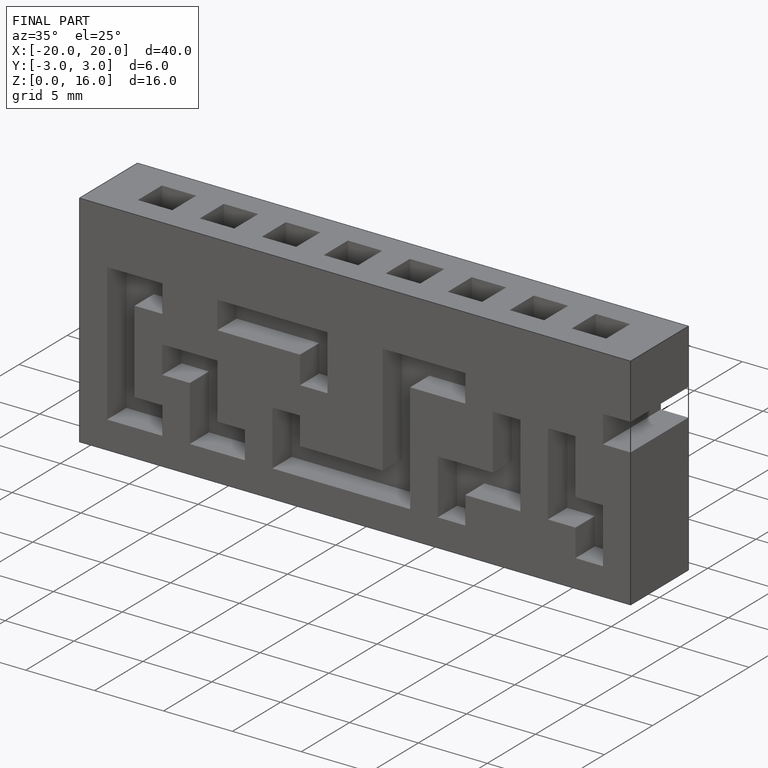
[diagram: finished part — iso view with bounding-box wireframe]
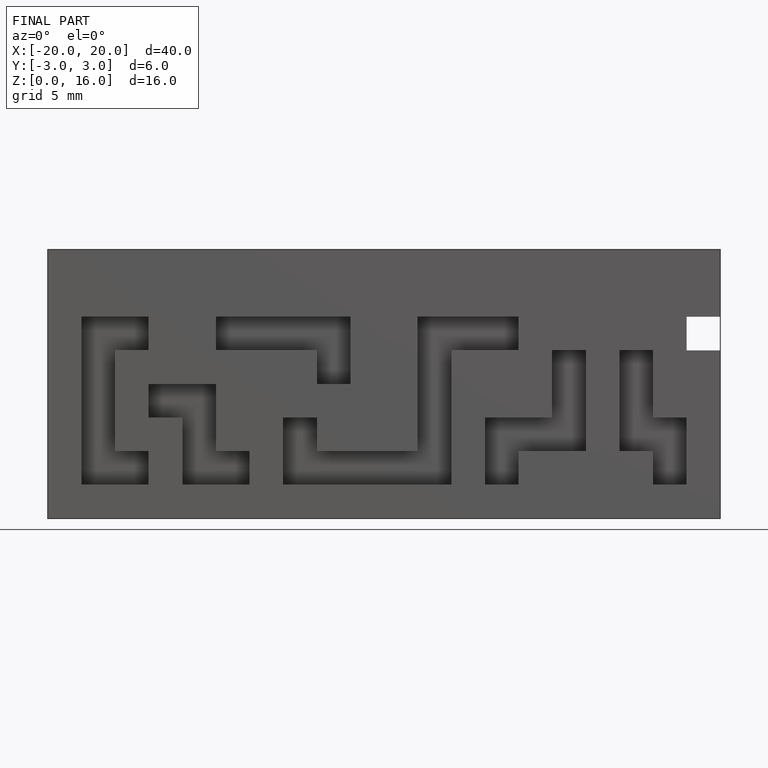
[diagram: finished part — front view with bounding-box wireframe]
